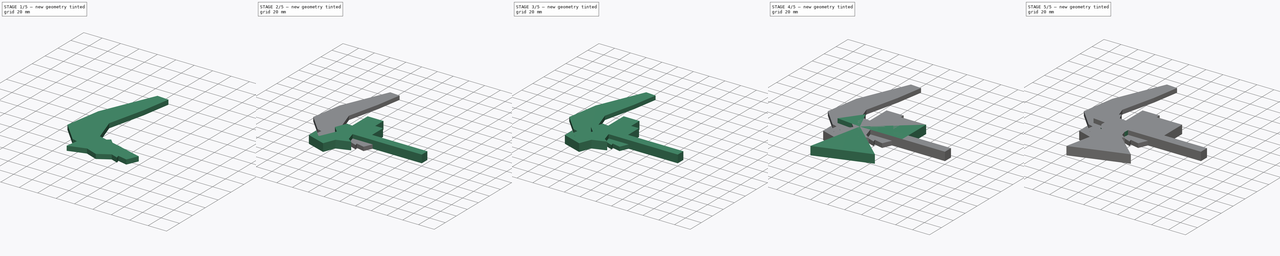
[diagram: build sequence overview — one tinted view per stage of 5, left to right]
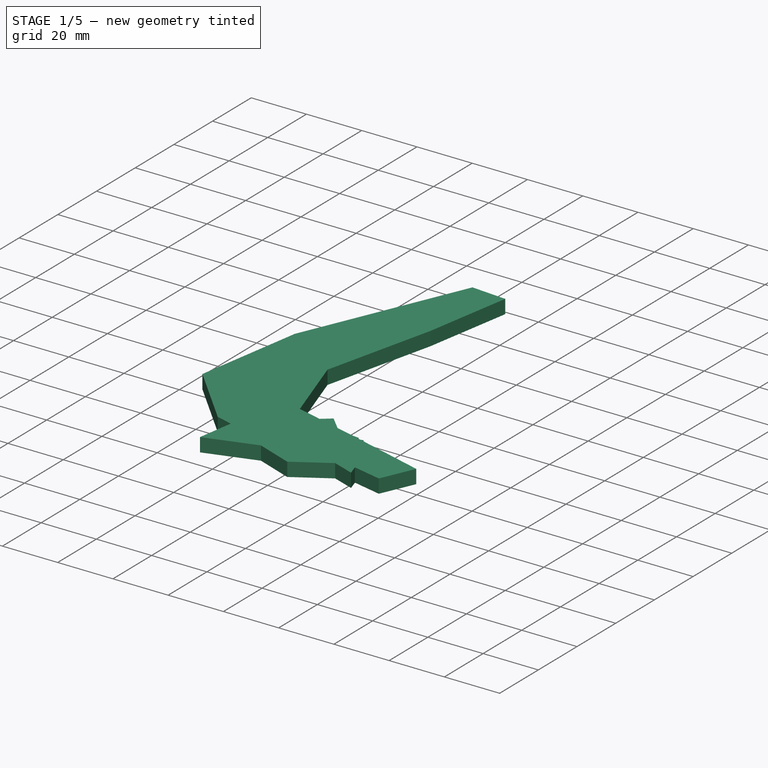
[diagram: stage 1 of 5 — iso view after this stage's code; geometry added in this stage tinted green]
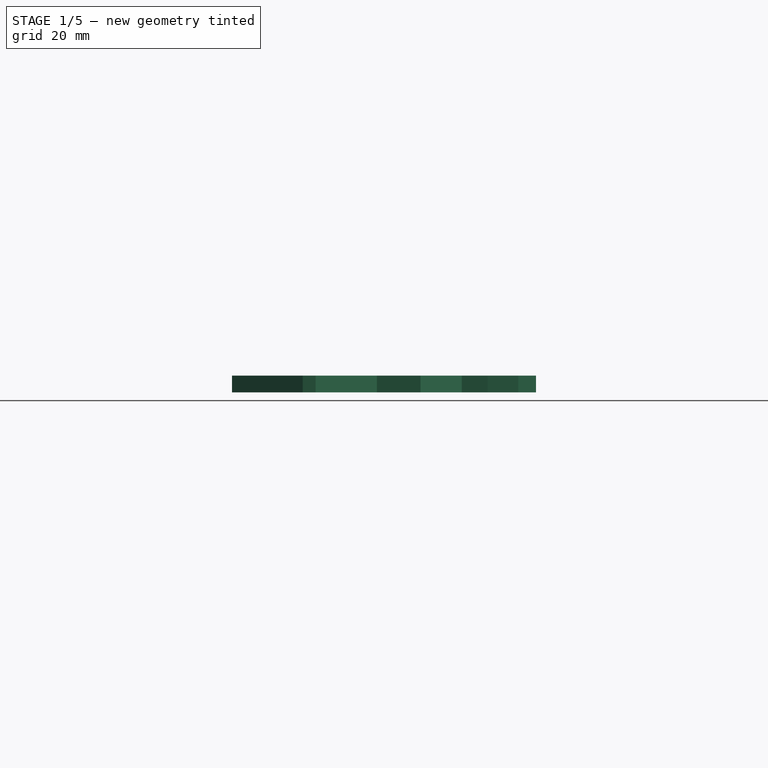
[diagram: stage 1 of 5 — front view after this stage's code; geometry added in this stage tinted green]
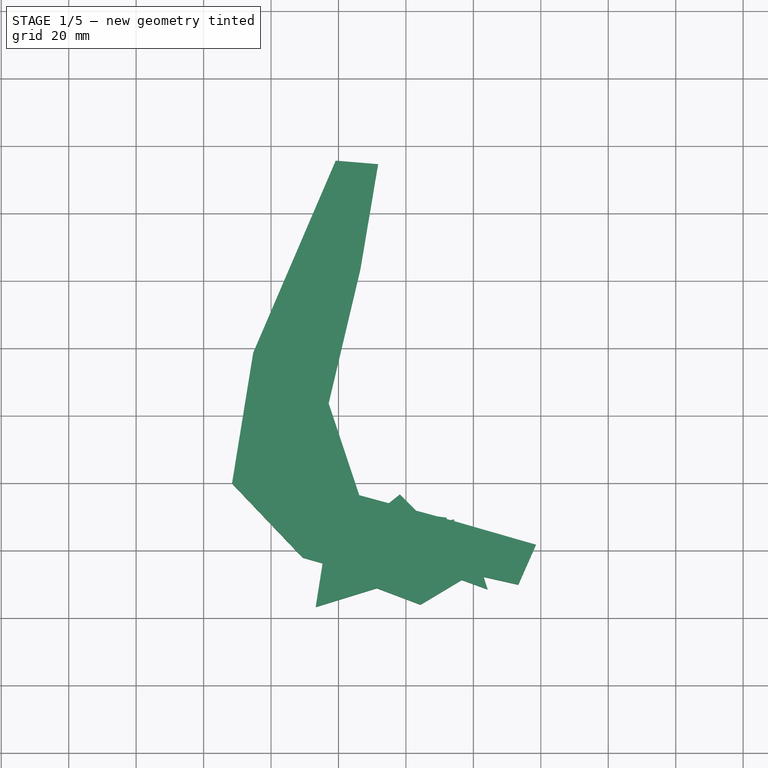
[diagram: stage 1 of 5 — top view after this stage's code; geometry added in this stage tinted green]
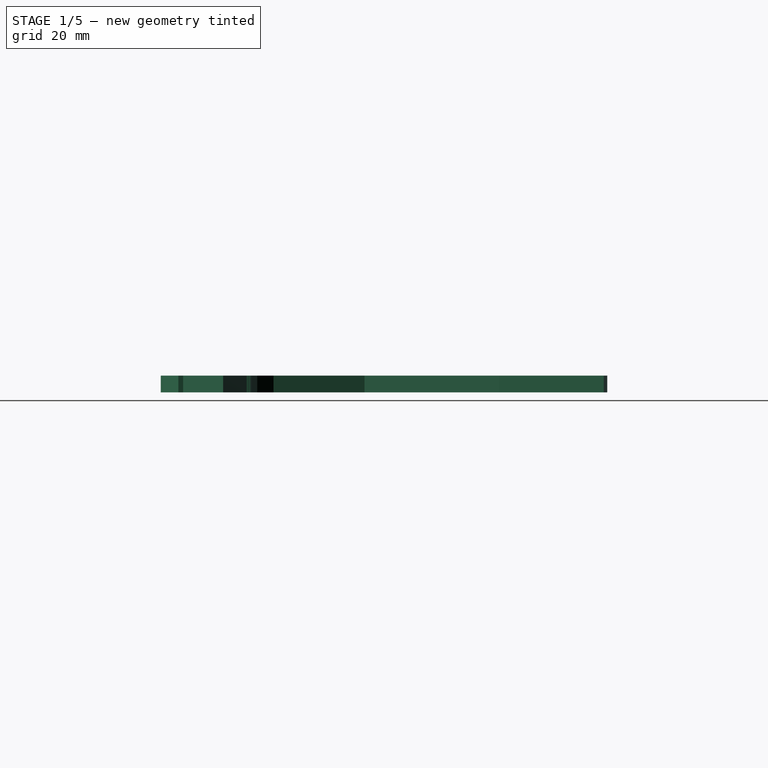
[diagram: stage 1 of 5 — right view after this stage's code; geometry added in this stage tinted green]
FCSTD DOCUMENT  (FreeCAD 0.19R)
Label: Model 10
License: All rights reserved
LicenseURL: http://en.wikipedia.org/wiki/All_rights_reserved
objects: Sketcher::SketchObject×18, PartDesign::Pad×17, PartDesign::Body×16
note: 68 computed .brp shape members not serialized (recipe doc carries the construction recipe); baked Part::Feature solids carry a one-line shape summary decoded from their .brp

FEATURE [PartDesign::Body] Body031
  Group = -> [Sketch034,Pad032]
  Origin = -> Origin034
  Placement = pos=(-21.7941,-17.8358,0) rot=(0,0,1;0rad)
  Tip = -> Pad032
FEATURE [Sketcher::SketchObject] Sketch035
  FullyConstrained = false
  MapMode = 5
  Support = -> [XY_Plane034]
  sketch-geometry (12):
    g0: LineSegment StartX=13.7584 StartY=0 StartZ=0 EndX=12.0115 EndY=9.80005 EndZ=0
    g1: LineSegment StartX=12.0115 StartY=9.80005 StartZ=0 EndX=-4.40937 EndY=11.8963 EndZ=0
    g2: LineSegment StartX=-4.40937 StartY=11.8963 StartZ=0 EndX=-28.5165 EndY=11.8963 EndZ=0
    g3: LineSegment StartX=-28.5165 StartY=11.8963 StartZ=0 EndX=-29.5647 EndY=0 EndZ=0
    g4: LineSegment StartX=-29.5647 StartY=0 StartZ=0 EndX=-24.6734 EndY=-3.47636 EndZ=0
    g5: LineSegment StartX=-24.6734 StartY=-3.47636 StartZ=0 EndX=-26.7696 EndY=-16.7528 EndZ=0
    g6: LineSegment StartX=-26.7696 StartY=-16.7528 StartZ=0 EndX=-8.6019 EndY=-11.1627 EndZ=0
    g7: LineSegment StartX=-8.6019 StartY=-11.1627 StartZ=0 EndX=4.32512 EndY=-16.054 EndZ=0
    g8: LineSegment StartX=4.32512 StartY=-16.054 StartZ=0 EndX=16.5534 EndY=-8.71706 EndZ=0
    g9: LineSegment StartX=16.5534 StartY=-8.71706 StartZ=0 EndX=24.2397 EndY=-11.5121 EndZ=0
    g10: LineSegment StartX=24.2397 StartY=-11.5121 StartZ=0 EndX=21.4447 EndY=-2.77761 EndZ=0
    g11: LineSegment StartX=21.4447 StartY=-2.77761 StartZ=0 EndX=13.7584 EndY=0 EndZ=0
  constraints (15):
    c: PointOnObject(g0,g-1)
    c: Coincident(g0,g1)
    c: Coincident(g1,g2)
    c: Horizontal(g2)
    c: Coincident(g2,g3)
    c: PointOnObject(g3,g-1)
    c: Coincident(g3,g4)
    c: Coincident(g4,g5)
    c: Coincident(g5,g6)
    c: Coincident(g6,g7)
    c: Coincident(g7,g8)
    c: Coincident(g8,g9)
    c: Coincident(g9,g10)
    c: Coincident(g10,g11)
    c: Coincident(g11,g0)
FEATURE [Sketcher::SketchObject] Sketch036
  FullyConstrained = false
  MapMode = 5
  Support = -> [XY_Plane032]
  sketch-geometry (8):
    g0: LineSegment StartX=16.4078 StartY=0 StartZ=0 EndX=14.21 EndY=9.29201 EndZ=0
    g1: LineSegment StartX=14.21 StartY=9.29201 StartZ=0 EndX=7.45958 EndY=7.40817 EndZ=0
    g2: LineSegment StartX=7.45958 StartY=7.40817 StartZ=0 EndX=-1.80261 EndY=16.6704 EndZ=0
    g3: LineSegment StartX=-1.80261 StartY=16.6704 StartZ=0 EndX=-17.3443 EndY=4.26845 EndZ=0
    g4: LineSegment StartX=-17.3443 StartY=4.26845 StartZ=0 EndX=-13.5766 EndY=-9.86031 EndZ=0
    g5: LineSegment StartX=-13.5766 StartY=-9.86031 StartZ=0 EndX=5.10478 EndY=-3.26689 EndZ=0
    g6: LineSegment StartX=5.10478 StartY=-3.26689 StartZ=0 EndX=11.8552 EndY=-6.09264 EndZ=0
    g7: LineSegment StartX=11.8552 StartY=-6.09264 StartZ=0 EndX=16.4078 EndY=0 EndZ=0
  constraints (9):
    c: PointOnObject(g0,g-1)
    c: Coincident(g0,g1)
    c: Coincident(g1,g2)
    c: Coincident(g2,g3)
    c: Coincident(g3,g4)
    c: Coincident(g4,g5)
    c: Coincident(g5,g6)
    c: Coincident(g6,g7)
    c: Coincident(g7,g0)
FEATURE [PartDesign::Pad] Pad035
  Direction = (1,1,1)
  Length = 5
  Length2 = 100
  Profile = -> Sketch036
  Type = 0
FEATURE [Sketcher::SketchObject] Sketch037
  FullyConstrained = true
  MapMode = 5
  Support = -> [XY_Plane032]
FEATURE [PartDesign::Body] Body032
  Group = -> [Sketch036,Pad035,Sketch037]
  Origin = -> Origin035
  Placement = pos=(-16.4078,-16.6704,0) rot=(0,0,1;0rad)
  Tip = -> Pad035
FEATURE [PartDesign::Pad] Pad037
  Direction = (1,1,1)
  Length = 5
  Length2 = 100
  Profile = -> Sketch035
  Type = 0
FEATURE [PartDesign::Body] Body034
  Group = -> [Sketch035,Pad037]
  Origin = -> Origin032
  Placement = pos=(-24.2397,-11.8963,0) rot=(0,0,1;0rad)
  Tip = -> Pad037
FEATURE [Sketcher::SketchObject] Sketch039
  FullyConstrained = false
  MapMode = 5
  Support = -> [XY_Plane037]
  sketch-geometry (13):
    g0: LineSegment StartX=22.4928 StartY=-7.66892 StartZ=0 EndX=-6.15626 EndY=-9.06644 EndZ=0
    g1: LineSegment StartX=-6.15626 StartY=-9.06644 StartZ=0 EndX=-30.6128 EndY=-2.07885 EndZ=0
    g2: LineSegment StartX=-30.6128 StartY=-2.07885 StartZ=0 EndX=-51.5756 EndY=19.9321 EndZ=0
    g3: LineSegment StartX=-51.5756 StartY=19.9321 StartZ=0 EndX=-45.2867 EndY=58.7132 EndZ=0
    g4: LineSegment StartX=-45.2867 StartY=58.7132 StartZ=0 EndX=-20.8302 EndY=115.662 EndZ=0
    g5: LineSegment StartX=-20.8302 StartY=115.662 StartZ=0 EndX=-8.25252 EndY=114.614 EndZ=0
    g6: LineSegment StartX=-8.25252 StartY=114.614 StartZ=0 EndX=-13.4932 EndY=83.5191 EndZ=0
    g7: LineSegment StartX=-13.4932 StartY=83.5191 StartZ=0 EndX=-22.9265 EndY=43.6898 EndZ=0
    g8: LineSegment StartX=-22.9265 StartY=43.6898 StartZ=0 EndX=-13.8426 EndY=16.4383 EndZ=0
    g9: LineSegment StartX=-13.8426 StartY=16.4383 StartZ=0 EndX=10.6139 EndY=9.80005 EndZ=0
    g10: LineSegment StartX=10.6139 StartY=9.80005 StartZ=0 EndX=38.5643 EndY=1.76432 EndZ=0
    g11: LineSegment StartX=38.5643 StartY=1.76432 StartZ=0 EndX=33.3236 EndY=-10.1146 EndZ=0
    g12: LineSegment StartX=33.3236 StartY=-10.1146 StartZ=0 EndX=22.4928 EndY=-7.66892 EndZ=0
  constraints (13):
    c: Coincident(g0,g1)
    c: Coincident(g1,g2)
    c: Coincident(g2,g3)
    c: Coincident(g3,g4)
    c: Coincident(g4,g5)
    c: Coincident(g5,g6)
    c: Coincident(g6,g7)
    c: Coincident(g7,g8)
    c: Coincident(g8,g9)
    c: Coincident(g9,g10)
    c: Coincident(g10,g11)
    c: Coincident(g11,g12)
    c: Coincident(g12,g0)
FEATURE [PartDesign::Pad] Pad038
  Direction = (1,1,1)
  Length = 5
  Length2 = 100
  Profile = -> Sketch039
  Type = 0
FEATURE [PartDesign::Body] Body037
  Group = -> [Sketch039,Pad038]
  Origin = -> Origin037
  Placement = pos=(-38.5643,-115.662,0) rot=(0,0,1;0rad)
  Tip = -> Pad038
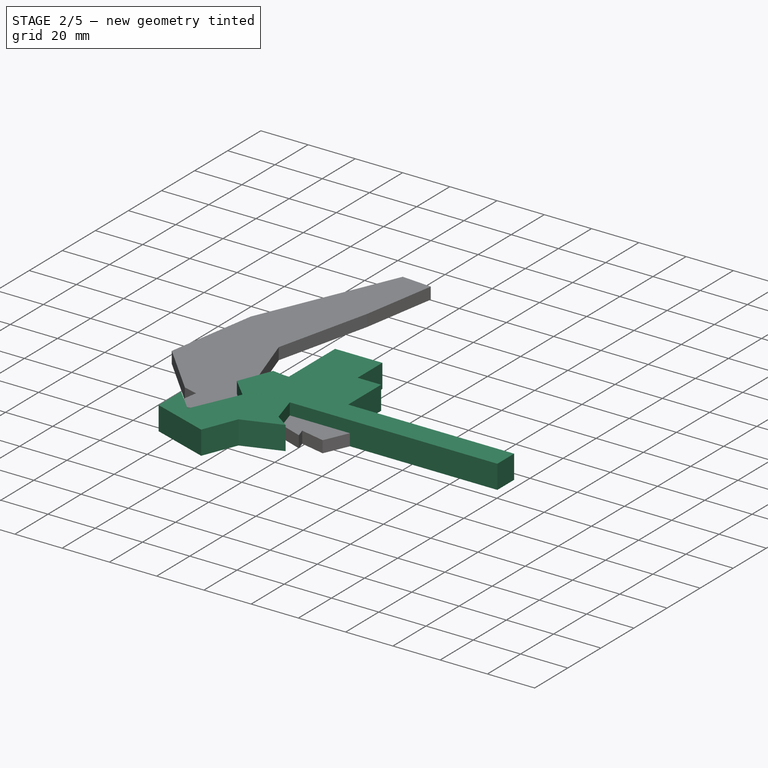
[diagram: stage 2 of 5 — iso view after this stage's code; geometry added in this stage tinted green]
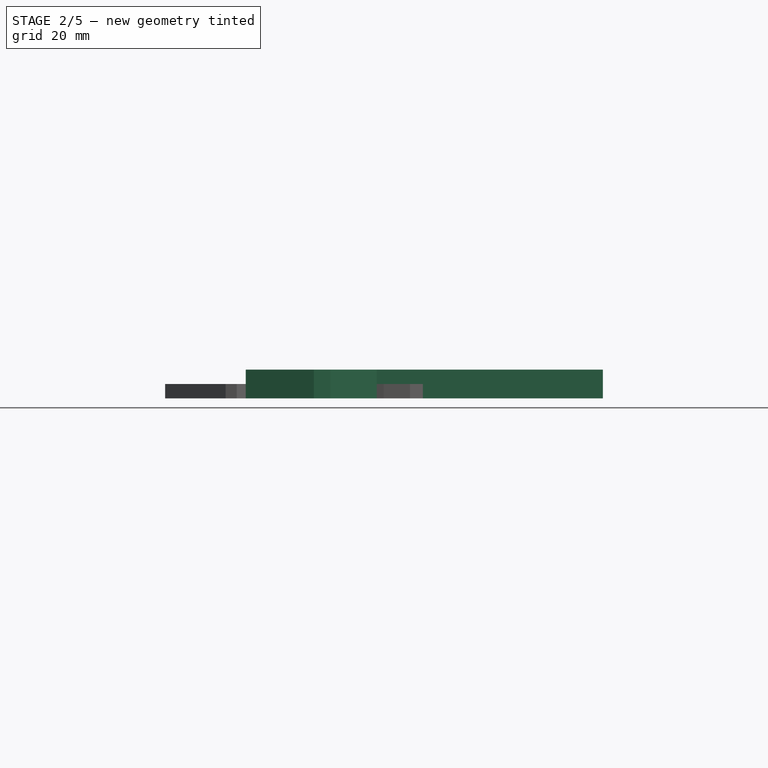
[diagram: stage 2 of 5 — front view after this stage's code; geometry added in this stage tinted green]
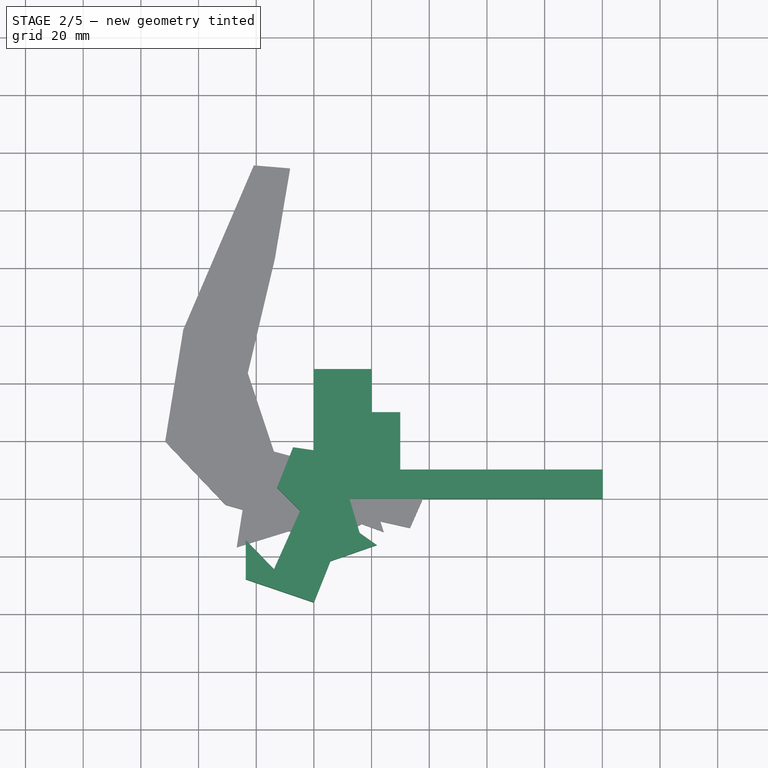
[diagram: stage 2 of 5 — top view after this stage's code; geometry added in this stage tinted green]
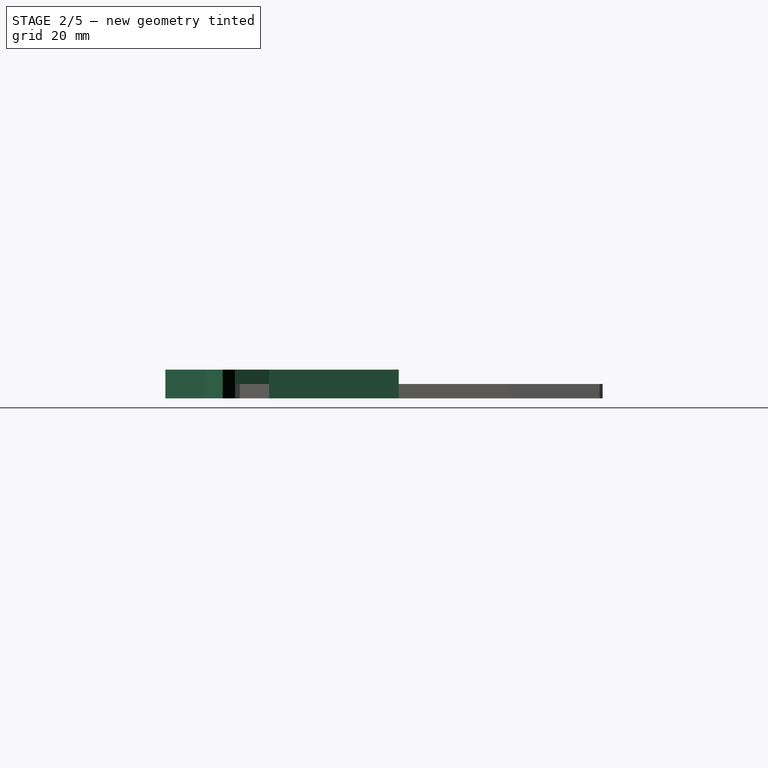
[diagram: stage 2 of 5 — right view after this stage's code; geometry added in this stage tinted green]
FEATURE [PartDesign::Body] Body008
  Group = -> [Sketch010,Pad014]
  Origin = -> Origin008
  Placement = pos=(0,-26.2294,0) rot=(0,0,1;0rad)
  Tip = -> Pad014
FEATURE [Sketcher::SketchObject] Sketch018
  FullyConstrained = false
  MapMode = 5
  Support = -> [XY_Plane027]
  sketch-geometry (4):
    g0: LineSegment StartX=0 StartY=0 StartZ=0 EndX=100.186 EndY=0 EndZ=0
    g1: LineSegment StartX=100.186 StartY=0 StartZ=0 EndX=100.186 EndY=10.1126 EndZ=0
    g2: LineSegment StartX=100.186 StartY=10.1126 StartZ=0 EndX=0 EndY=10.1126 EndZ=0
    g3: LineSegment StartX=0 StartY=10.1126 StartZ=0 EndX=0 EndY=0 EndZ=0
  constraints (9):
    c: Coincident(g0,g1)
    c: Coincident(g1,g2)
    c: Coincident(g2,g3)
    c: Coincident(g3,g0)
    c: Horizontal(g0)
    c: Horizontal(g2)
    c: Vertical(g1)
    c: Vertical(g3)
    c: Coincident(g0,g-1)
FEATURE [Sketcher::SketchObject] Sketch020
  FullyConstrained = false
  MapMode = 5
  Support = -> [XY_Plane019]
  sketch-geometry (4):
    g0: LineSegment StartX=0 StartY=0 StartZ=0 EndX=20.0157 EndY=0 EndZ=0
    g1: LineSegment StartX=20.0157 StartY=0 StartZ=0 EndX=20.0157 EndY=44.9765 EndZ=0
    g2: LineSegment StartX=20.0157 StartY=44.9765 StartZ=0 EndX=0 EndY=44.9765 EndZ=0
    g3: LineSegment StartX=0 StartY=44.9765 StartZ=0 EndX=0 EndY=0 EndZ=0
  constraints (9):
    c: Coincident(g0,g1)
    c: Coincident(g1,g2)
    c: Coincident(g2,g3)
    c: Coincident(g3,g0)
    c: Horizontal(g0)
    c: Horizontal(g2)
    c: Vertical(g1)
    c: Vertical(g3)
    c: Coincident(g0,g-1)
FEATURE [PartDesign::Pad] Pad020
  Direction = (1,1,1)
  Length = 10
  Length2 = 100
  Profile = -> Sketch020
  Type = 0
FEATURE [PartDesign::Body] Body022
  Group = -> [Sketch028,Pad027]
  Origin = -> Origin027
  Placement = pos=(-29.9606,-30.0272,0) rot=(0,0,1;0rad)
  Tip = -> Pad027
FEATURE [Sketcher::SketchObject] Sketch029
  FullyConstrained = false
  MapMode = 5
  Support = -> [XY_Plane023]
  sketch-geometry (4):
    g0: LineSegment StartX=0 StartY=0 StartZ=0 EndX=29.9606 EndY=0 EndZ=0
    g1: LineSegment StartX=29.9606 StartY=0 StartZ=0 EndX=29.9606 EndY=30.0272 EndZ=0
    g2: LineSegment StartX=29.9606 StartY=30.0272 StartZ=0 EndX=0 EndY=30.0272 EndZ=0
    g3: LineSegment StartX=0 StartY=30.0272 StartZ=0 EndX=0 EndY=0 EndZ=0
  constraints (9):
    c: Coincident(g0,g1)
    c: Coincident(g1,g2)
    c: Coincident(g2,g3)
    c: Coincident(g3,g0)
    c: Horizontal(g0)
    c: Horizontal(g2)
    c: Vertical(g1)
    c: Vertical(g3)
    c: Coincident(g0,g-1)
FEATURE [PartDesign::Pad] Pad021
  Direction = (1,1,1)
  Length = 10
  Length2 = 100
  Profile = -> Sketch029
  Type = 0
FEATURE [PartDesign::Body] Body018
  Group = -> [Sketch030,Pad024]
  Origin = -> Origin020
  Placement = pos=(-29.9606,-30.0272,0) rot=(0,0,1;0rad)
  Tip = -> Pad024
FEATURE [PartDesign::Body] Body026
  Group = -> [Sketch029,Pad021]
  Origin = -> Origin029
  Placement = pos=(-29.9606,-30.0272,0) rot=(0,0,1;0rad)
  Tip = -> Pad021
FEATURE [PartDesign::Pad] Pad031
  Direction = (1,1,1)
  Length = 10
  Length2 = 100
  Profile = -> Sketch024
  Type = 0
FEATURE [PartDesign::Body] Body027
  Group = -> [Sketch024,Pad031]
  Origin = -> Origin017
  Placement = pos=(-100.186,-10.1126,0) rot=(0,0,1;0rad)
  Tip = -> Pad031
FEATURE [PartDesign::Body] Body030
  Group = -> [Sketch020,Pad020]
  Origin = -> Origin028
  Placement = pos=(-20.0157,-44.9765,0) rot=(0,0,1;0rad)
  Tip = -> Pad020
FEATURE [Sketcher::SketchObject] Sketch034
  FullyConstrained = false
  MapMode = 5
  Support = -> [XY_Plane031]
  sketch-geometry (12):
    g0: LineSegment StartX=15.8546 StartY=-11.8615 StartZ=0 EndX=10.9633 EndY=4.55936 EndZ=0
    g1: LineSegment StartX=10.9633 StartY=4.55936 StartZ=0 EndX=21.4447 EndY=13.6432 EndZ=0
    g2: LineSegment StartX=21.4447 StartY=13.6432 StartZ=0 EndX=-7.20441 EndY=17.8358 EndZ=0
    g3: LineSegment StartX=-7.20441 StartY=17.8358 StartZ=0 EndX=-12.7945 EndY=3.8606 EndZ=0
    g4: LineSegment StartX=-12.7945 StartY=3.8606 StartZ=0 EndX=-4.75875 EndY=-4.17513 EndZ=0
    g5: LineSegment StartX=-4.75875 StartY=-4.17513 StartZ=0 EndX=-13.8426 EndY=-24.4391 EndZ=0
    g6: LineSegment StartX=-13.8426 StartY=-24.4391 StartZ=0 EndX=-23.6252 EndY=-14.3071 EndZ=0
    g7: LineSegment StartX=-23.6252 StartY=-14.3071 StartZ=0 EndX=-23.6252 EndY=-27.9329 EndZ=0
    g8: LineSegment StartX=-23.6252 StartY=-27.9329 StartZ=0 EndX=0 EndY=-35.9686 EndZ=0
    g9: LineSegment StartX=0 StartY=-35.9686 StartZ=0 EndX=5.72263 EndY=-21.6441 EndZ=0
    g10: LineSegment StartX=5.72263 StartY=-21.6441 StartZ=0 EndX=21.7941 EndY=-16.054 EndZ=0
    g11: LineSegment StartX=21.7941 StartY=-16.054 StartZ=0 EndX=15.8546 EndY=-11.8615 EndZ=0
  constraints (14):
    c: Coincident(g0,g1)
    c: Coincident(g1,g2)
    c: Coincident(g2,g3)
    c: Coincident(g3,g4)
    c: Coincident(g4,g5)
    c: Coincident(g5,g6)
    c: Coincident(g6,g7)
    c: Vertical(g7)
    c: Coincident(g7,g8)
    c: PointOnObject(g8,g-2)
    c: Coincident(g8,g9)
    c: Coincident(g9,g10)
    c: Coincident(g10,g11)
    c: Coincident(g11,g0)
FEATURE [PartDesign::Pad] Pad032
  Direction = (1,1,1)
  Length = 10
  Length2 = 100
  Profile = -> Sketch034
  Type = 0
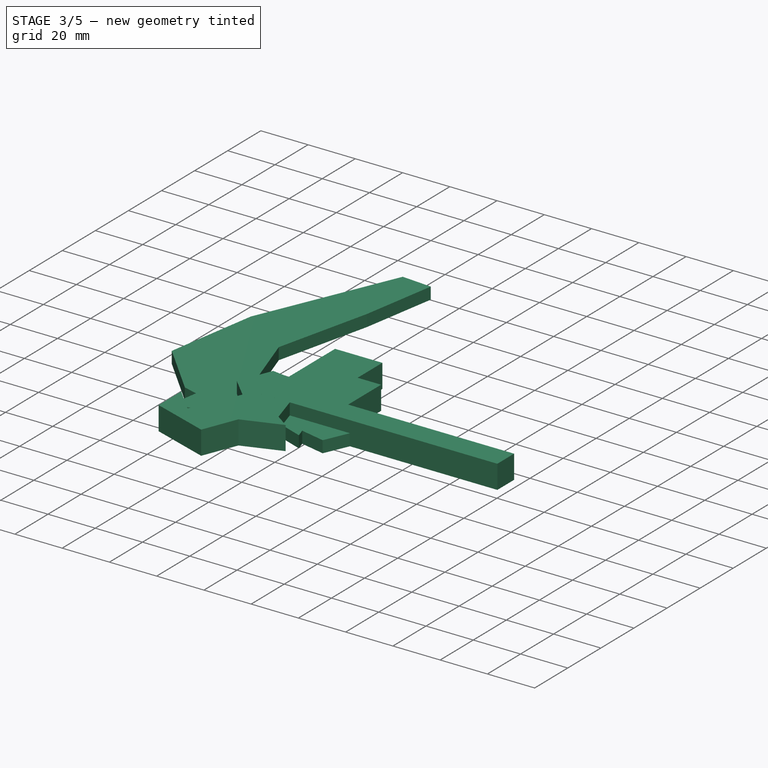
[diagram: stage 3 of 5 — iso view after this stage's code; geometry added in this stage tinted green]
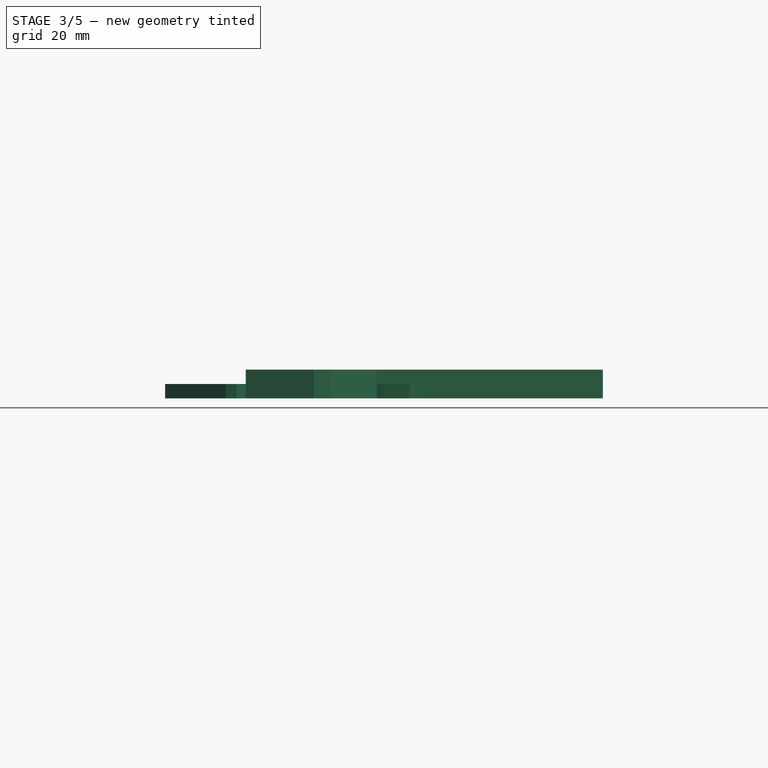
[diagram: stage 3 of 5 — front view after this stage's code; geometry added in this stage tinted green]
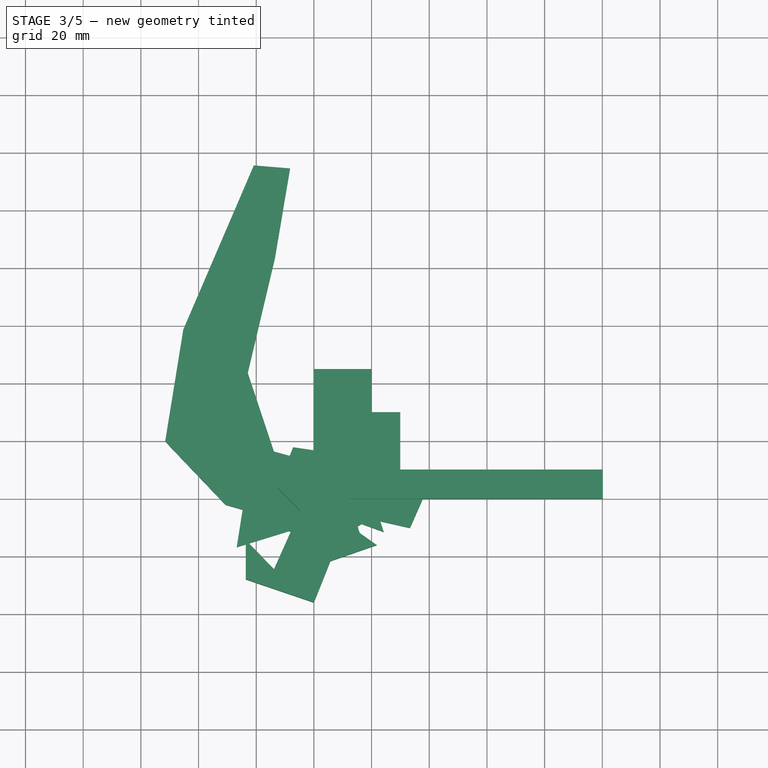
[diagram: stage 3 of 5 — top view after this stage's code; geometry added in this stage tinted green]
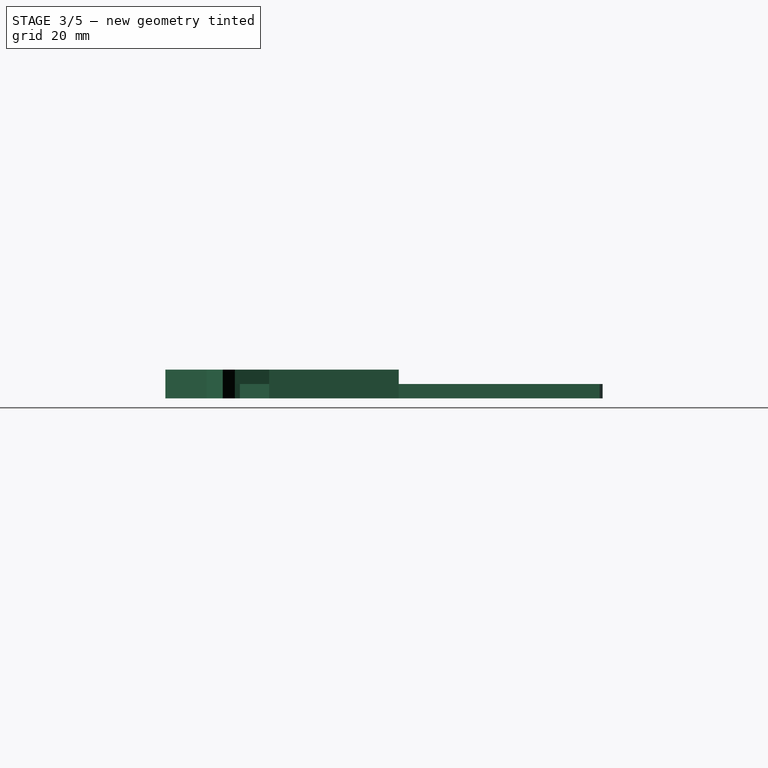
[diagram: stage 3 of 5 — right view after this stage's code; geometry added in this stage tinted green]
FEATURE [Sketcher::SketchObject] Sketch024
  FullyConstrained = false
  MapMode = 5
  Support = -> [XY_Plane022]
  sketch-geometry (4):
    g0: LineSegment StartX=0 StartY=0 StartZ=0 EndX=100.186 EndY=0 EndZ=0
    g1: LineSegment StartX=100.186 StartY=0 StartZ=0 EndX=100.186 EndY=10.1126 EndZ=0
    g2: LineSegment StartX=100.186 StartY=10.1126 StartZ=0 EndX=0 EndY=10.1126 EndZ=0
    g3: LineSegment StartX=0 StartY=10.1126 StartZ=0 EndX=0 EndY=0 EndZ=0
  constraints (9):
    c: Coincident(g0,g1)
    c: Coincident(g1,g2)
    c: Coincident(g2,g3)
    c: Coincident(g3,g0)
    c: Horizontal(g0)
    c: Horizontal(g2)
    c: Vertical(g1)
    c: Vertical(g3)
    c: Coincident(g0,g-1)
FEATURE [PartDesign::Pad] Pad025
  Direction = (1,1,1)
  Length = 10
  Length2 = 100
  Profile = -> Sketch018
  Type = 0
FEATURE [PartDesign::Body] Body024
  Group = -> [Sketch026,Pad022]
  Origin = -> Origin023
  Placement = pos=(-49.8752,-40.1592,0) rot=(0,0,1;0rad)
  Tip = -> Pad022
FEATURE [Sketcher::SketchObject] Sketch028
  FullyConstrained = false
  MapMode = 5
  Support = -> [XY_Plane021]
  sketch-geometry (4):
    g0: LineSegment StartX=0 StartY=0 StartZ=0 EndX=29.9606 EndY=0 EndZ=0
    g1: LineSegment StartX=29.9606 StartY=0 StartZ=0 EndX=29.9606 EndY=30.0272 EndZ=0
    g2: LineSegment StartX=29.9606 StartY=30.0272 StartZ=0 EndX=0 EndY=30.0272 EndZ=0
    g3: LineSegment StartX=0 StartY=30.0272 StartZ=0 EndX=0 EndY=0 EndZ=0
  constraints (9):
    c: Coincident(g0,g1)
    c: Coincident(g1,g2)
    c: Coincident(g2,g3)
    c: Coincident(g3,g0)
    c: Horizontal(g0)
    c: Horizontal(g2)
    c: Vertical(g1)
    c: Vertical(g3)
    c: Coincident(g0,g-1)
FEATURE [PartDesign::Pad] Pad027
  Direction = (1,1,1)
  Length = 10
  Length2 = 100
  Profile = -> Sketch028
  Type = 0
FEATURE [Sketcher::SketchObject] Sketch030
  FullyConstrained = false
  MapMode = 5
  Support = -> [XY_Plane018]
  sketch-geometry (4):
    g0: LineSegment StartX=0 StartY=0 StartZ=0 EndX=29.9606 EndY=0 EndZ=0
    g1: LineSegment StartX=29.9606 StartY=0 StartZ=0 EndX=29.9606 EndY=30.0272 EndZ=0
    g2: LineSegment StartX=29.9606 StartY=30.0272 StartZ=0 EndX=0 EndY=30.0272 EndZ=0
    g3: LineSegment StartX=0 StartY=30.0272 StartZ=0 EndX=0 EndY=0 EndZ=0
  constraints (9):
    c: Coincident(g0,g1)
    c: Coincident(g1,g2)
    c: Coincident(g2,g3)
    c: Coincident(g3,g0)
    c: Horizontal(g0)
    c: Horizontal(g2)
    c: Vertical(g1)
    c: Vertical(g3)
    c: Coincident(g0,g-1)
FEATURE [PartDesign::Pad] Pad024
  Direction = (1,1,1)
  Length = 10
  Length2 = 100
  Profile = -> Sketch030
  Type = 0
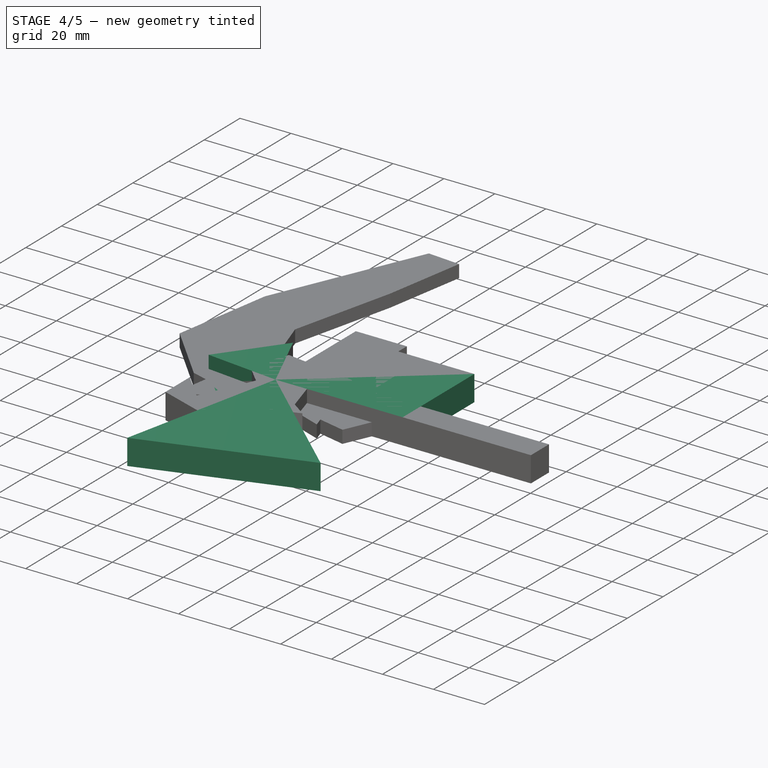
[diagram: stage 4 of 5 — iso view after this stage's code; geometry added in this stage tinted green]
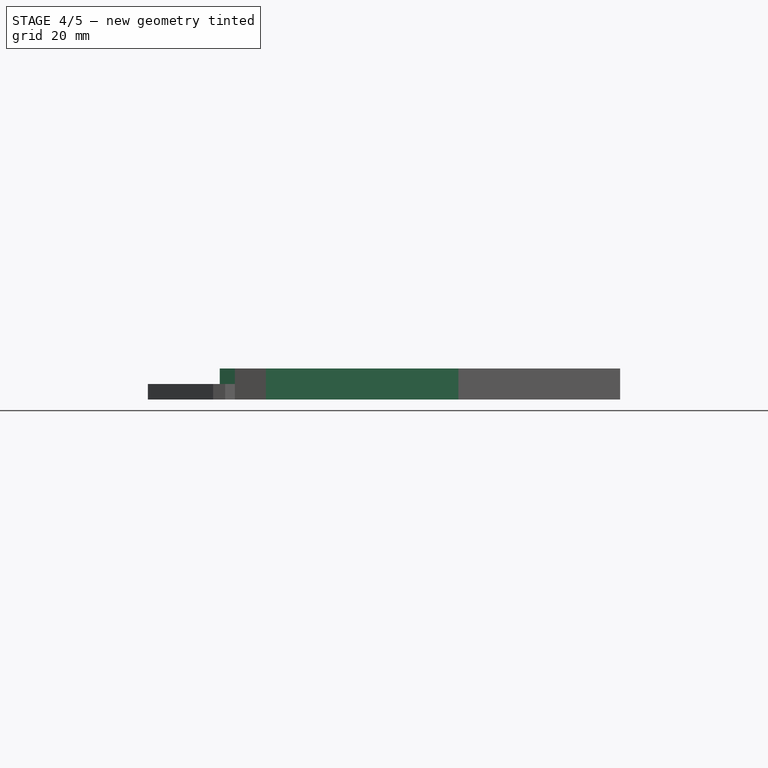
[diagram: stage 4 of 5 — front view after this stage's code; geometry added in this stage tinted green]
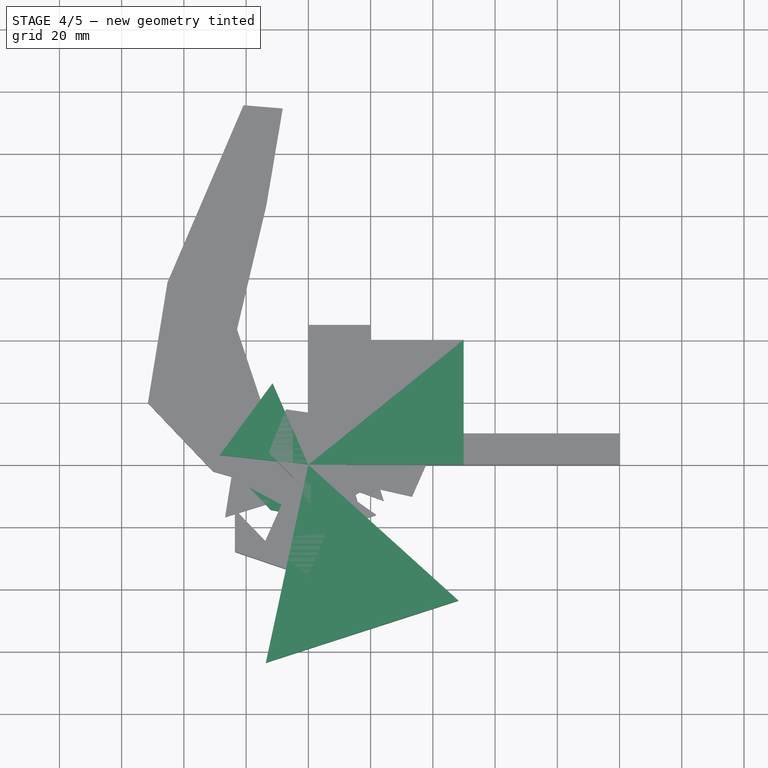
[diagram: stage 4 of 5 — top view after this stage's code; geometry added in this stage tinted green]
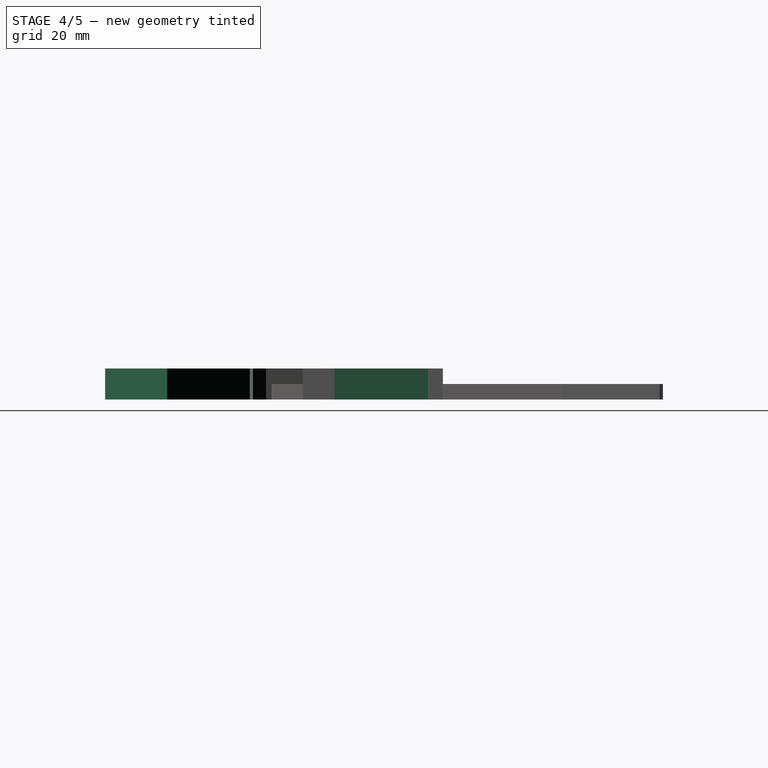
[diagram: stage 4 of 5 — right view after this stage's code; geometry added in this stage tinted green]
FEATURE [PartDesign::Body] Body006
  Group = -> [Sketch006,Pad006,Sketch007,Pad007]
  Origin = -> Origin006
  Placement = pos=(-13.2288,-17.2452,0) rot=(0,0,1;0rad)
  Tip = -> Pad007
FEATURE [Sketcher::SketchObject] Sketch008
  FullyConstrained = false
  MapMode = 5
  Support = -> [XY_Plane007]
  sketch-geometry (11):
    g0: LineSegment StartX=7.00769 StartY=-11.7841 StartZ=0 EndX=11.7671 EndY=-2.86367 EndZ=0
    g1: LineSegment StartX=11.7671 StartY=-2.86367 StartZ=0 EndX=10.3741 EndY=7.1506 EndZ=0
    g2: LineSegment StartX=10.3741 StartY=7.1506 StartZ=0 EndX=3.36102 EndY=14.4336 EndZ=0
    g3: LineSegment StartX=3.36102 StartY=14.4336 StartZ=0 EndX=-6.59355 EndY=16.2034 EndZ=0
    g4: LineSegment StartX=-6.59355 StartY=16.2034 StartZ=0 EndX=-15.6873 EndY=11.7841 EndZ=0
    g5: LineSegment StartX=-15.6873 StartY=11.7841 StartZ=0 EndX=-20.4466 EndY=2.86367 EndZ=0
    g6: LineSegment StartX=-20.4466 StartY=2.86367 StartZ=0 EndX=-19.0537 EndY=-7.1506 EndZ=0
    g7: LineSegment StartX=-19.0537 StartY=-7.1506 StartZ=0 EndX=-12.0406 EndY=-14.4336 EndZ=0
    g8: LineSegment StartX=-12.0406 StartY=-14.4336 StartZ=0 EndX=-2.08601 EndY=-16.2034 EndZ=0
    g9: LineSegment StartX=-2.08601 StartY=-16.2034 StartZ=0 EndX=7.00769 EndY=-11.7841 EndZ=0
    g10: Circle CenterX=-4.33978 CenterY=0 CenterZ=0 NormalX=0 NormalY=0 NormalZ=1 AngleXU=0 Radius=16.3594
  constraints (22):
    c: Coincident(g0,g1)
    c: Coincident(g1,g2)
    c: Coincident(g2,g3)
    c: Coincident(g3,g4)
    c: Coincident(g4,g5)
    c: Coincident(g5,g6)
    c: Coincident(g6,g7)
    c: Coincident(g7,g8)
    c: Coincident(g8,g9)
    c: Coincident(g9,g0)
    c: Equal(g0, g1-g9) x9
    c: PointOnObject(g0,g10)
    c: PointOnObject(g1,g10)
    c: PointOnObject(g2,g10)
    c: PointOnObject(g3,g10)
    c: PointOnObject(g4,g10)
    c: PointOnObject(g5,g10)
    c: PointOnObject(g6,g10)
    c: PointOnObject(g7,g10)
    c: PointOnObject(g8,g10)
    c: PointOnObject(g9,g10)
    c: PointOnObject(g10,g-1)
FEATURE [PartDesign::Pad] Pad008
  Direction = (1,1,1)
  Length = 5
  Length2 = 100
  Profile = -> Sketch008
  Type = 0
FEATURE [PartDesign::Body] Body007
  Group = -> [Sketch008,Pad008]
  Origin = -> Origin007
  Placement = pos=(-11.7671,-16.2034,0) rot=(0,0,1;0rad)
  Tip = -> Pad008
FEATURE [Sketcher::SketchObject] Sketch010
  FullyConstrained = false
  MapMode = 5
  Support = -> [XY_Plane009]
  sketch-geometry (4):
    g0: LineSegment StartX=0 StartY=0 StartZ=0 EndX=-11.4951 EndY=26.2294 EndZ=0
    g1: LineSegment StartX=-11.4951 StartY=26.2294 StartZ=0 EndX=-28.4629 EndY=3.1596 EndZ=0
    g2: LineSegment StartX=-28.4629 StartY=3.1596 StartZ=0 EndX=0 EndY=0 EndZ=0
    g3: Circle CenterX=-13.3193 CenterY=9.79632 CenterZ=0 NormalX=0 NormalY=0 NormalZ=1 AngleXU=0 Radius=16.534
  constraints (9):
    c: Coincident(g0,g1)
    c: Coincident(g1,g2)
    c: Coincident(g2,g0)
    c: Equal(g0,g1)
    c: Equal(g0,g2)
    c: PointOnObject(g0,g3)
    c: PointOnObject(g1,g3)
    c: PointOnObject(g2,g3)
    c: Coincident(g2,g-1)
FEATURE [Sketcher::SketchObject] Sketch014
  FullyConstrained = false
  MapMode = 5
  Support = -> [XY_Plane012]
  sketch-geometry (4):
    g0: LineSegment StartX=0 StartY=0 StartZ=0 EndX=-13.6603 EndY=-63.5488 EndZ=0
    g1: LineSegment StartX=-13.6603 StartY=-63.5488 StartZ=0 EndX=48.2047 EndY=-43.6046 EndZ=0
    g2: LineSegment StartX=48.2047 StartY=-43.6046 StartZ=0 EndX=0 EndY=0 EndZ=0
    g3: Circle CenterX=11.5148 CenterY=-35.7178 CenterZ=0 NormalX=0 NormalY=0 NormalZ=1 AngleXU=0 Radius=37.528
  constraints (9):
    c: Coincident(g0,g1)
    c: Coincident(g1,g2)
    c: Coincident(g2,g0)
    c: Equal(g0,g1)
    c: Equal(g0,g2)
    c: PointOnObject(g0,g3)
    c: PointOnObject(g1,g3)
    c: PointOnObject(g2,g3)
    c: Coincident(g2,g-1)
FEATURE [PartDesign::Pad] Pad013
  Direction = (1,1,1)
  Length = 10
  Length2 = 100
  Profile = -> Sketch014
  Type = 0
FEATURE [PartDesign::Body] Body011
  Group = -> [Sketch014,Pad013]
  Origin = -> Origin011
  Placement = pos=(-48.2047,0,0) rot=(0,0,1;0rad)
  Tip = -> Pad013
FEATURE [PartDesign::Pad] Pad014
  Direction = (1,1,1)
  Length = 10
  Length2 = 100
  Profile = -> Sketch010
  Type = 0
FEATURE [PartDesign::Body] Body017
  Group = -> [Sketch018,Pad025]
  Origin = -> Origin025
  Placement = pos=(-100.186,-10.1126,0) rot=(0,0,1;0rad)
  Tip = -> Pad025
FEATURE [Sketcher::SketchObject] Sketch026
  FullyConstrained = false
  MapMode = 5
  Support = -> [XY_Plane025]
  sketch-geometry (4):
    g0: LineSegment StartX=0 StartY=0 StartZ=0 EndX=49.8752 EndY=0 EndZ=0
    g1: LineSegment StartX=49.8752 StartY=0 StartZ=0 EndX=49.8752 EndY=40.1592 EndZ=0
    g2: LineSegment StartX=49.8752 StartY=40.1592 StartZ=0 EndX=0 EndY=40.1592 EndZ=0
    g3: LineSegment StartX=0 StartY=40.1592 StartZ=0 EndX=0 EndY=0 EndZ=0
  constraints (9):
    c: Coincident(g0,g1)
    c: Coincident(g1,g2)
    c: Coincident(g2,g3)
    c: Coincident(g3,g0)
    c: Horizontal(g0)
    c: Horizontal(g2)
    c: Vertical(g1)
    c: Vertical(g3)
    c: Coincident(g0,g-1)
FEATURE [PartDesign::Pad] Pad022
  Direction = (1,1,1)
  Length = 10
  Length2 = 100
  Profile = -> Sketch026
  Type = 0
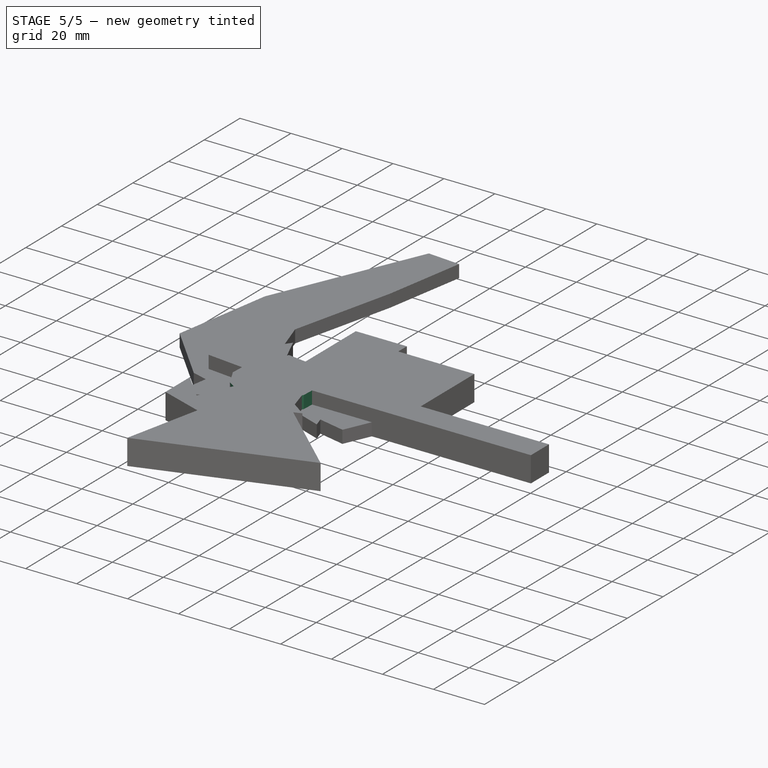
[diagram: stage 5 of 5 — iso view after this stage's code; geometry added in this stage tinted green]
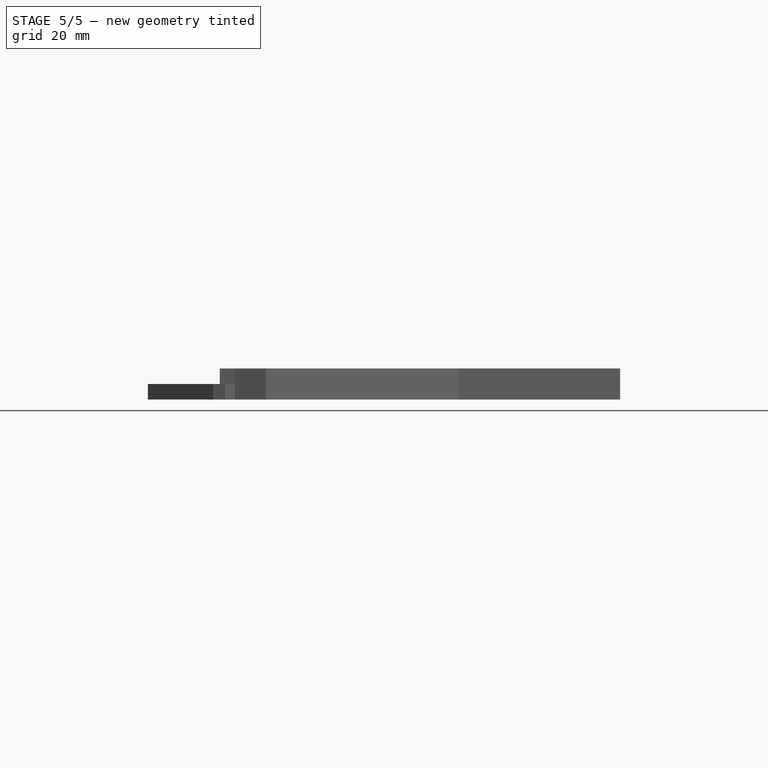
[diagram: stage 5 of 5 — front view after this stage's code; geometry added in this stage tinted green]
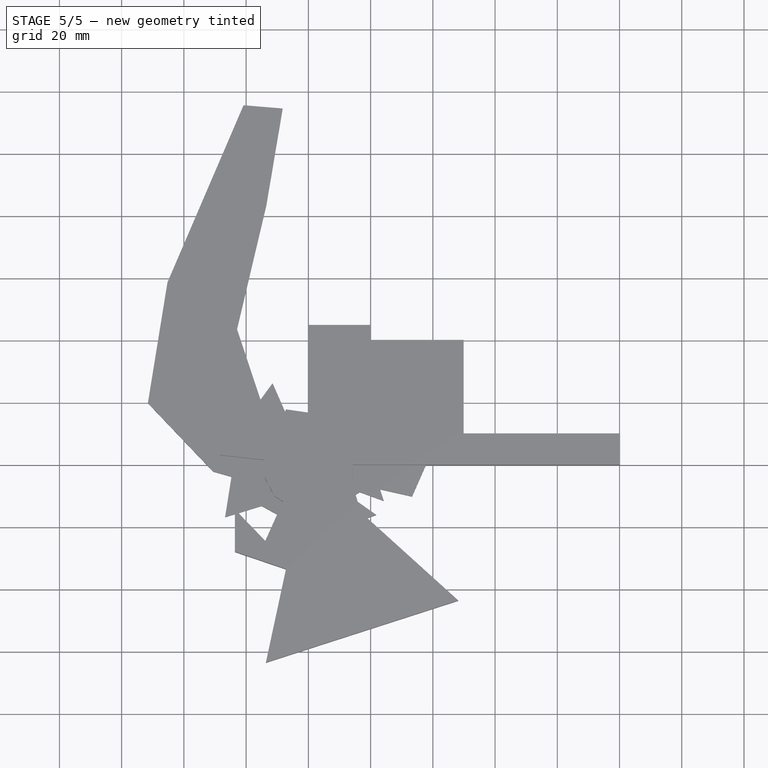
[diagram: stage 5 of 5 — top view after this stage's code; geometry added in this stage tinted green]
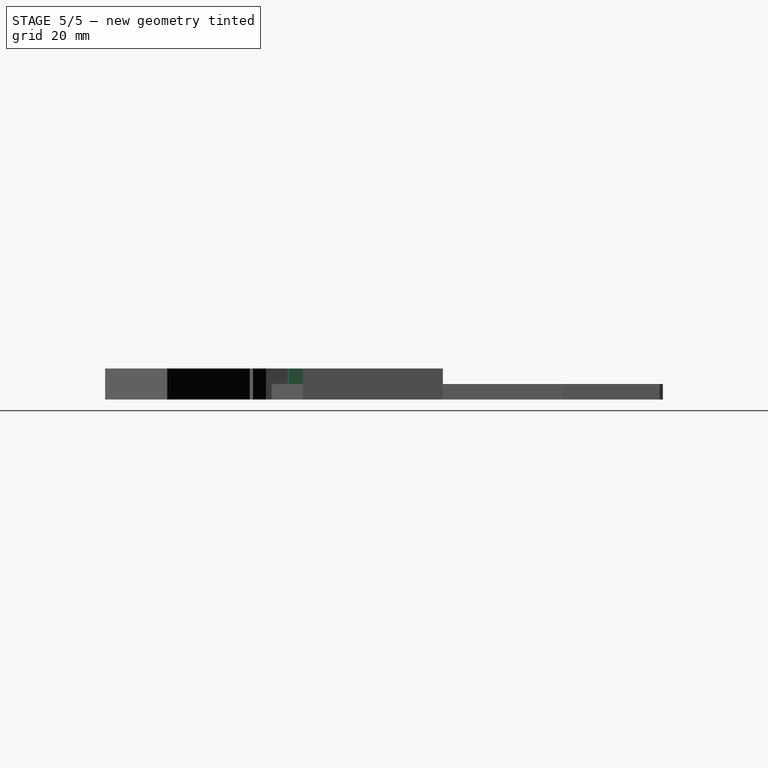
[diagram: stage 5 of 5 — right view after this stage's code; geometry added in this stage tinted green]
FEATURE [Sketcher::SketchObject] Sketch001
  FullyConstrained = false
  MapMode = 5
  Support = -> [XY_Plane001]
  sketch-geometry (13):
    g0: LineSegment StartX=-14.1465 StartY=4.38587 StartZ=0 EndX=-14.4442 EndY=-3.27498 EndZ=0
    g1: LineSegment StartX=-14.4442 StartY=-3.27498 StartZ=0 EndX=-10.8715 EndY=-10.0583 EndZ=0
    g2: LineSegment StartX=-10.8715 StartY=-10.0583 StartZ=0 EndX=-4.38587 EndY=-14.1465 EndZ=0
    g3: LineSegment StartX=-4.38587 StartY=-14.1465 StartZ=0 EndX=3.27498 EndY=-14.4442 EndZ=0
    g4: LineSegment StartX=3.27498 StartY=-14.4442 StartZ=0 EndX=10.0583 EndY=-10.8715 EndZ=0
    g5: LineSegment StartX=10.0583 StartY=-10.8715 StartZ=0 EndX=14.1465 EndY=-4.38587 EndZ=0
    g6: LineSegment StartX=14.1465 StartY=-4.38587 StartZ=0 EndX=14.4442 EndY=3.27498 EndZ=0
    g7: LineSegment StartX=14.4442 StartY=3.27498 StartZ=0 EndX=10.8715 EndY=10.0583 EndZ=0
    g8: LineSegment StartX=10.8715 StartY=10.0583 StartZ=0 EndX=4.38587 EndY=14.1465 EndZ=0
    g9: LineSegment StartX=4.38587 StartY=14.1465 StartZ=0 EndX=-3.27498 EndY=14.4442 EndZ=0
    g10: LineSegment StartX=-3.27498 StartY=14.4442 StartZ=0 EndX=-10.0583 EndY=10.8715 EndZ=0
    g11: LineSegment StartX=-10.0583 StartY=10.8715 StartZ=0 EndX=-14.1465 EndY=4.38587 EndZ=0
    g12: Circle CenterX=0 CenterY=0 CenterZ=0 NormalX=0 NormalY=0 NormalZ=1 AngleXU=0 Radius=14.8108
  constraints (26):
    c: Coincident(g0,g1)
    c: Coincident(g1,g2)
    c: Coincident(g2,g3)
    c: Coincident(g3,g4)
    c: Coincident(g4,g5)
    c: Coincident(g5,g6)
    c: Coincident(g6,g7)
    c: Coincident(g7,g8)
    c: Coincident(g8,g9)
    c: Coincident(g9,g10)
    c: Coincident(g10,g11)
    c: Coincident(g11,g0)
    c: Equal(g0, g1-g11) x11
    c: PointOnObject(g0,g12)
    c: PointOnObject(g1,g12)
    c: PointOnObject(g2,g12)
    c: PointOnObject(g3,g12)
    c: PointOnObject(g4,g12)
    c: PointOnObject(g5,g12)
    c: PointOnObject(g6,g12)
    c: PointOnObject(g7,g12)
    c: PointOnObject(g8,g12)
    c: PointOnObject(g9,g12)
    c: PointOnObject(g10,g12)
    c: PointOnObject(g11,g12)
    c: Coincident(g12,g-1)
FEATURE [PartDesign::Pad] Pad001
  Direction = (1,1,1)
  Length = 10
  Length2 = 100
  Profile = -> Sketch001
  Type = 0
FEATURE [PartDesign::Body] Body001
  Group = -> [Sketch001,Pad001]
  Origin = -> Origin001
  Placement = pos=(-14.4442,-14.4442,0) rot=(0,0,1;0rad)
  Tip = -> Pad001
FEATURE [Sketcher::SketchObject] Sketch006
  FullyConstrained = false
  MapMode = 5
  Support = -> [XY_Plane006]
  sketch-geometry (4):
    g0: LineSegment StartX=-10.5155 StartY=8.31443 StartZ=0 EndX=6.81498 EndY=8.31443 EndZ=0
    g1: LineSegment StartX=6.81498 StartY=8.31443 StartZ=0 EndX=6.81498 EndY=-6.67411 EndZ=0
    g2: LineSegment StartX=6.81498 StartY=-6.67411 StartZ=0 EndX=-10.5155 EndY=-6.67411 EndZ=0
    g3: LineSegment StartX=-10.5155 StartY=-6.67411 StartZ=0 EndX=-10.5155 EndY=8.31443 EndZ=0
  constraints (8):
    c: Coincident(g0,g1)
    c: Coincident(g1,g2)
    c: Coincident(g2,g3)
    c: Coincident(g3,g0)
    c: Horizontal(g0)
    c: Horizontal(g2)
    c: Vertical(g1)
    c: Vertical(g3)
FEATURE [PartDesign::Pad] Pad006
  Direction = (1,1,1)
  Length = 10
  Length2 = 100
  Profile = -> Sketch006
  Type = 0
FEATURE [Sketcher::SketchObject] Sketch007
  FullyConstrained = false
  MapMode = 5
  Support = -> [XY_Plane006]
  sketch-geometry (16):
    g0: LineSegment StartX=10.0196 StartY=10.4579 StartZ=0 EndX=4.57389 EndY=15.1624 EndZ=0
    g1: LineSegment StartX=4.57389 StartY=15.1624 StartZ=0 EndX=-2.31456 EndY=17.2452 EndZ=0
    g2: LineSegment StartX=-2.31456 StartY=17.2452 StartZ=0 EndX=-9.45463 EndY=16.3462 EndZ=0
    g3: LineSegment StartX=-9.45463 StartY=16.3462 StartZ=0 EndX=-15.6117 EndY=12.6207 EndZ=0
    g4: LineSegment StartX=-15.6117 StartY=12.6207 StartZ=0 EndX=-19.7213 EndY=6.71307 EndZ=0
    g5: LineSegment StartX=-19.7213 StartY=6.71307 StartZ=0 EndX=-21.0726 EndY=-0.355362 EndZ=0
    g6: LineSegment StartX=-21.0726 StartY=-0.355362 StartZ=0 EndX=-19.4322 EndY=-7.36235 EndZ=0
    g7: LineSegment StartX=-19.4322 StartY=-7.36235 StartZ=0 EndX=-15.0836 EndY=-13.0963 EndZ=0
    g8: LineSegment StartX=-15.0836 StartY=-13.0963 StartZ=0 EndX=-8.7787 EndY=-16.5658 EndZ=0
    g9: LineSegment StartX=-8.7787 StartY=-16.5658 StartZ=0 EndX=-1.60773 EndY=-17.1709 EndZ=0
    g10: LineSegment StartX=-1.60773 StartY=-17.1709 StartZ=0 EndX=5.1894 EndY=-14.807 EndZ=0
    g11: LineSegment StartX=5.1894 StartY=-14.807 StartZ=0 EndX=10.4374 EndY=-9.88287 EndZ=0
    g12: LineSegment StartX=10.4374 StartY=-9.88287 StartZ=0 EndX=13.2288 EndY=-3.24987 EndZ=0
    g13: LineSegment StartX=13.2288 StartY=-3.24987 StartZ=0 EndX=13.0811 EndY=3.94506 EndZ=0
    g14: LineSegment StartX=13.0811 StartY=3.94506 StartZ=0 EndX=10.0196 EndY=10.4579 EndZ=0
    g15: Circle CenterX=-3.76979 CenterY=0 CenterZ=0 NormalX=0 NormalY=0 NormalZ=1 AngleXU=0 Radius=17.3065
  constraints (32):
    c: Coincident(g0,g1)
    c: Coincident(g1,g2)
    c: Coincident(g2,g3)
    c: Coincident(g3,g4)
    c: Coincident(g4,g5)
    c: Coincident(g5,g6)
    c: Coincident(g6,g7)
    c: Coincident(g7,g8)
    c: Coincident(g8,g9)
    c: Coincident(g9,g10)
    c: Coincident(g10,g11)
    c: Coincident(g11,g12)
    c: Coincident(g12,g13)
    c: Coincident(g13,g14)
    c: Coincident(g14,g0)
    c: Equal(g0, g1-g14) x14
    c: PointOnObject(g0,g15)
    c: PointOnObject(g1,g15)
    c: PointOnObject(g2,g15)
    c: PointOnObject(g3,g15)
    c: PointOnObject(g4,g15)
    c: PointOnObject(g5,g15)
    c: PointOnObject(g6,g15)
    c: PointOnObject(g7,g15)
    c: PointOnObject(g8,g15)
    c: PointOnObject(g9,g15)
    c: PointOnObject(g10,g15)
    c: PointOnObject(g11,g15)
    c: PointOnObject(g12,g15)
    c: PointOnObject(g13,g15)
    c: PointOnObject(g14,g15)
    c: PointOnObject(g15,g-1)
FEATURE [PartDesign::Pad] Pad007
  BaseFeature = -> Pad006
  Direction = (1,1,1)
  Length = 5
  Length2 = 100
  Profile = -> Sketch007
  Type = 0
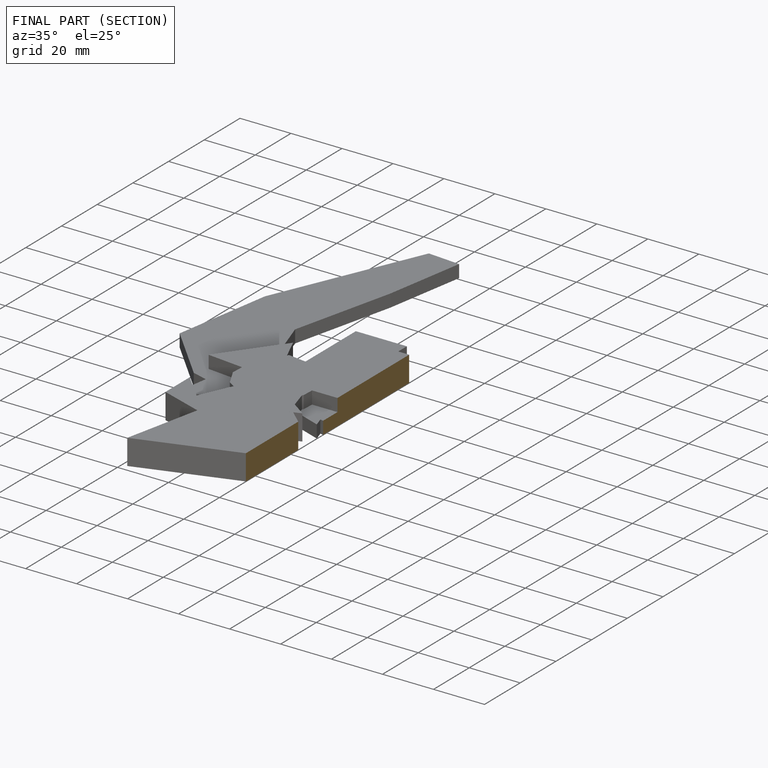
[diagram: finished part — half-section view (interior)]
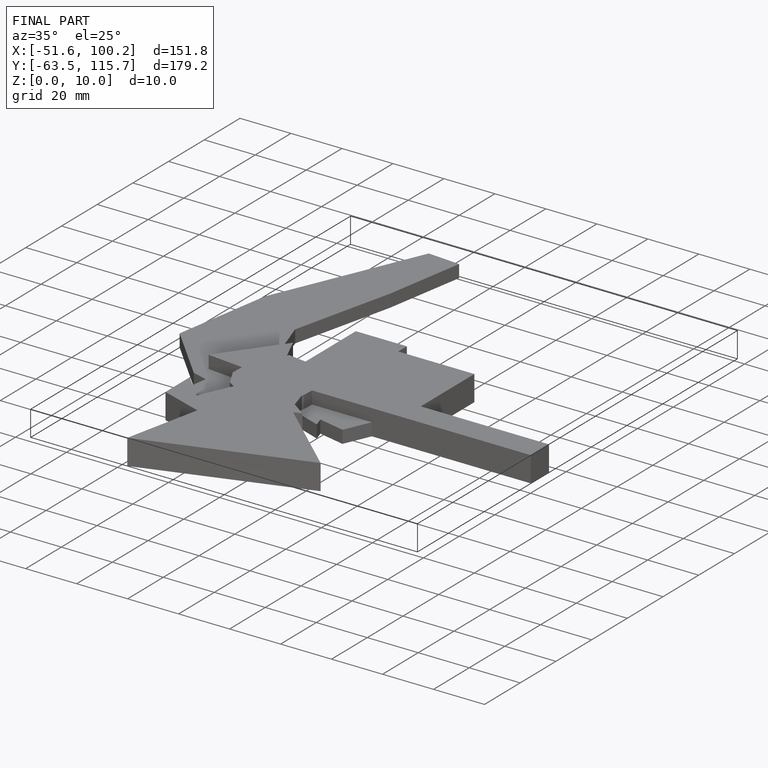
[diagram: finished part — iso view with bounding-box wireframe]
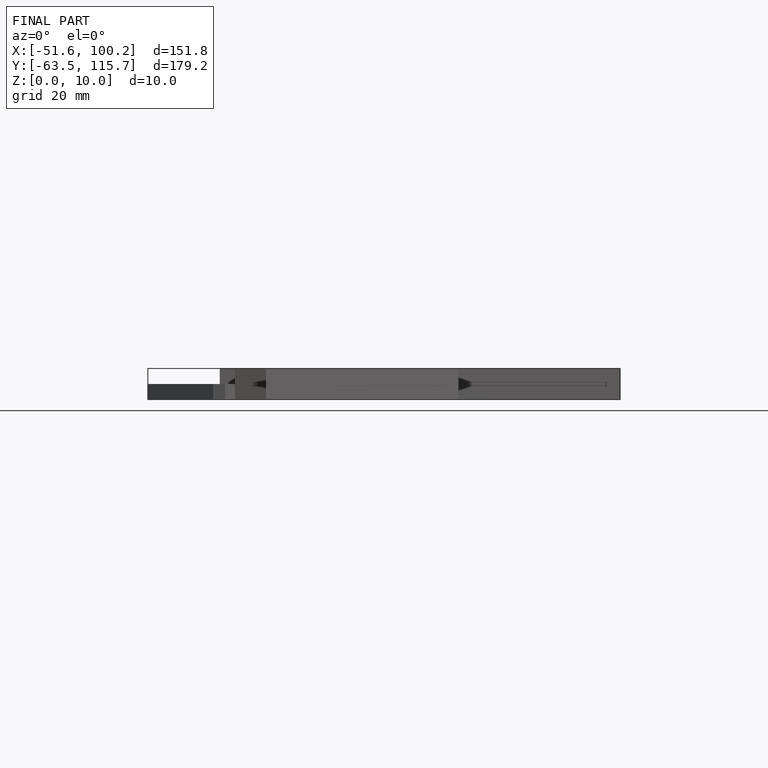
[diagram: finished part — front view with bounding-box wireframe]
